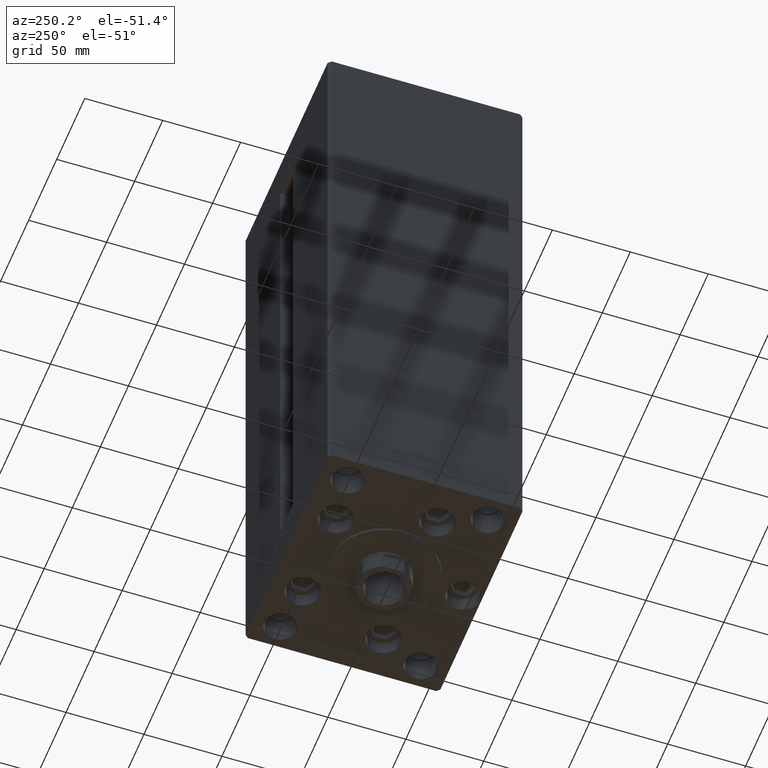
[diagram: clean part render]
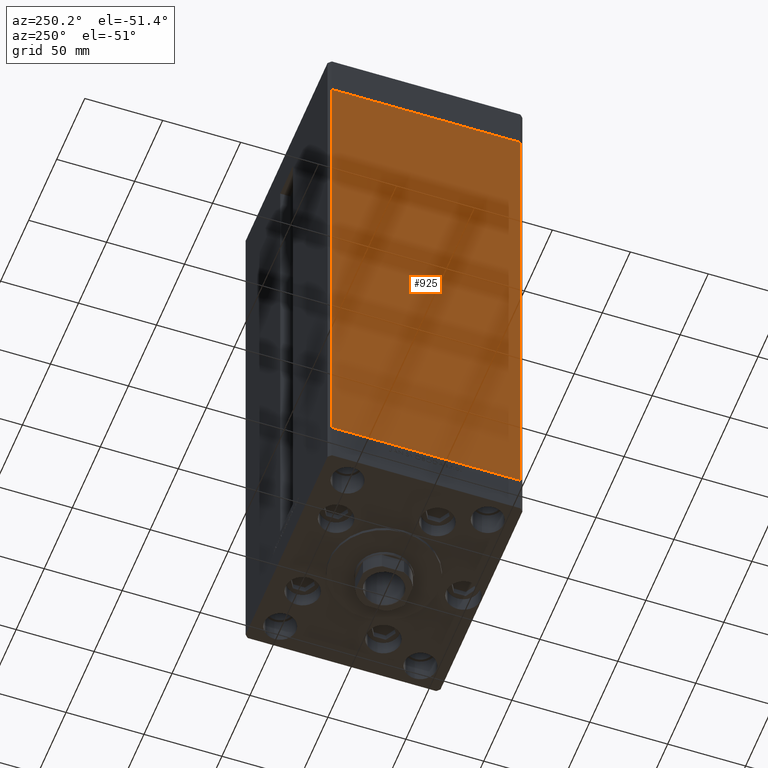
[diagram: same view with one face highlighted and labeled with its STEP entity id]
A machine part, auxiliary view. The second image highlights one B-rep face of the part: STEP entity #925.
In plain terms, the highlighted planar face has unit normal (1, 0, 0).
Its self-contained STEP definition (entity closure, byte-faithful):
#714 = ORIENTED_EDGE ( 'NONE', *, *, #17274, .F. ) ;
#925 = ADVANCED_FACE ( 'NONE', ( #7962 ), #14652, .F. ) ;
#2007 = DIRECTION ( 'NONE',  ( -0.000000000000000000, -0.000000000000000000, -1.000000000000000000 ) ) ;
#3490 = CARTESIAN_POINT ( 'NONE',  ( -75.00000000000001421, 60.50000000000000000, 327.0000000000000000 ) ) ;
#4864 = ORIENTED_EDGE ( 'NONE', *, *, #33014, .T. ) ;
#5034 = CARTESIAN_POINT ( 'NONE',  ( -74.99999999999998579, -60.50000000000000000, 327.0000000000000000 ) ) ;
#7629 = VECTOR ( 'NONE', #47052, 1000.000000000000000 ) ;
#7962 = FACE_OUTER_BOUND ( 'NONE', #13926, .T. ) ;
#8854 = VECTOR ( 'NONE', #30921, 1000.000000000000000 ) ;
#9104 = CARTESIAN_POINT ( 'NONE',  ( -75.00000000000001421, 60.50000000000000000, 327.0000000000000000 ) ) ;
#9679 = CARTESIAN_POINT ( 'NONE',  ( -75.00000000000001421, 60.50000000000000000, 0.000000000000000000 ) ) ;
#13926 = EDGE_LOOP ( 'NONE', ( #4864, #29722, #714, #16301 ) ) ;
#14652 = PLANE ( 'NONE',  #35880 ) ;
#15219 = EDGE_CURVE ( 'NONE', #29748, #39631, #44306, .T. ) ;
#16301 = ORIENTED_EDGE ( 'NONE', *, *, #15219, .T. ) ;
#17274 = EDGE_CURVE ( 'NONE', #29748, #36876, #19510, .T. ) ;
#19085 = DIRECTION ( 'NONE',  ( 1.000000000000000000, 2.293849224432141861E-16, -0.000000000000000000 ) ) ;
#19510 = LINE ( 'NONE', #9104, #8854 ) ;
#19909 = CARTESIAN_POINT ( 'NONE',  ( -75.00000000000001421, 60.50000000000000000, 327.0000000000000000 ) ) ;
#20570 = LINE ( 'NONE', #39886, #43296 ) ;
#22800 = CARTESIAN_POINT ( 'NONE',  ( -74.99999999999998579, -60.50000000000000000, 0.000000000000000000 ) ) ;
#27518 = CARTESIAN_POINT ( 'NONE',  ( -75.00000000000001421, 60.50000000000000000, 0.000000000000000000 ) ) ;
#29722 = ORIENTED_EDGE ( 'NONE', *, *, #37167, .F. ) ;
#29748 = VERTEX_POINT ( 'NONE', #19909 ) ;
#29999 = DIRECTION ( 'NONE',  ( -2.293849224432141861E-16, 1.000000000000000000, 0.000000000000000000 ) ) ;
#30921 = DIRECTION ( 'NONE',  ( 2.293849224432141861E-16, -1.000000000000000000, 0.000000000000000000 ) ) ;
#31064 = VERTEX_POINT ( 'NONE', #22800 ) ;
#31693 = VECTOR ( 'NONE', #48502, 1000.000000000000000 ) ;
#33014 = EDGE_CURVE ( 'NONE', #39631, #31064, #42856, .T. ) ;
#35880 = AXIS2_PLACEMENT_3D ( 'NONE', #3490, #19085, #29999 ) ;
#36876 = VERTEX_POINT ( 'NONE', #5034 ) ;
#37167 = EDGE_CURVE ( 'NONE', #36876, #31064, #20570, .T. ) ;
#39631 = VERTEX_POINT ( 'NONE', #9679 ) ;
#39886 = CARTESIAN_POINT ( 'NONE',  ( -74.99999999999998579, -60.50000000000000000, 327.0000000000000000 ) ) ;
#42856 = LINE ( 'NONE', #27518, #7629 ) ;
#43296 = VECTOR ( 'NONE', #2007, 1000.000000000000000 ) ;
#43810 = CARTESIAN_POINT ( 'NONE',  ( -75.00000000000001421, 60.50000000000000000, 327.0000000000000000 ) ) ;
#44306 = LINE ( 'NONE', #43810, #31693 ) ;
#47052 = DIRECTION ( 'NONE',  ( 2.293849224432141861E-16, -1.000000000000000000, 0.000000000000000000 ) ) ;
#48502 = DIRECTION ( 'NONE',  ( -0.000000000000000000, -0.000000000000000000, -1.000000000000000000 ) ) ;